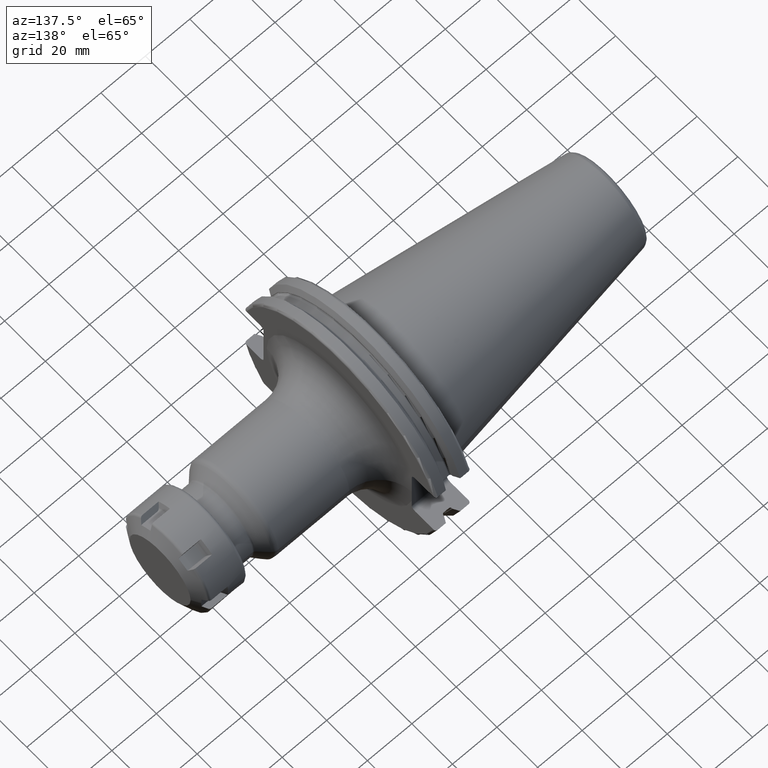
[diagram: clean part render]
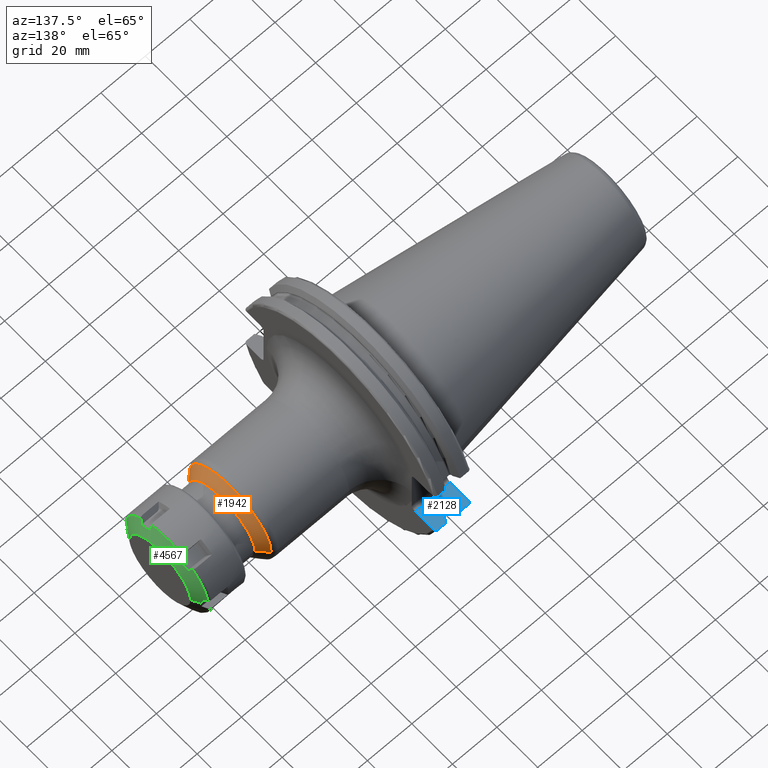
[diagram: same view with three faces highlighted in distinct colors, each labeled with its STEP entity id]
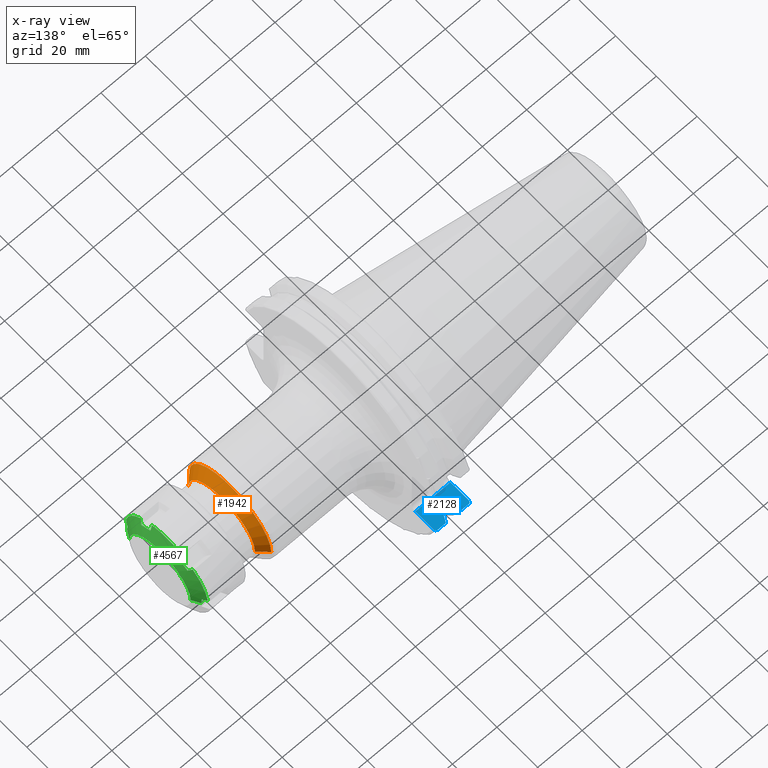
[diagram: x-ray of the same camera — body ghosted, the three highlighted faces saturated]
A machine part, auxiliary view with three faces highlighted in distinct colors.
The next image is the same camera in x-ray (body ghosted, the three faces saturated) — at least one of them is partly hidden behind the body in this view.
Their STEP definitions:

[orange] entity #1942 — the highlighted conical surface has half-angle 45 deg.
#243=DIRECTION('',(-7.071067811865E-1,-7.071067811865E-1,-2.816704242456E-12));
#244=VECTOR('',#243,5.414213562372E0);
#245=CARTESIAN_POINT('',(7.220710678119E1,-1.629289321881E1,
8.958065872191E-13));
#246=LINE('',#245,#244);
#252=DIRECTION('',(-7.071067811865E-1,7.071067811865E-1,2.816683508165E-12));
#253=VECTOR('',#252,5.414213562372E0);
#254=CARTESIAN_POINT('',(7.220710678119E1,1.629289321881E1,
-8.981511589857E-13));
#255=LINE('',#254,#253);
#256=CARTESIAN_POINT('',(6.837867965644E1,0.E0,0.E0));
#257=DIRECTION('',(-1.E0,0.E0,0.E0));
#258=DIRECTION('',(0.E0,-1.E0,0.E0));
#259=AXIS2_PLACEMENT_3D('',#256,#257,#258);
#261=CARTESIAN_POINT('',(7.220710678119E1,0.E0,0.E0));
#262=DIRECTION('',(1.E0,0.E0,0.E0));
#263=DIRECTION('',(0.E0,1.E0,0.E0));
#264=AXIS2_PLACEMENT_3D('',#261,#262,#263);
#1576=CARTESIAN_POINT('',(7.220710678119E1,-1.629289321881E1,0.E0));
#1577=CARTESIAN_POINT('',(7.220710678119E1,1.629289321881E1,0.E0));
#1578=VERTEX_POINT('',#1576);
#1579=VERTEX_POINT('',#1577);
#1588=CARTESIAN_POINT('',(6.837867965644E1,2.012132034356E1,0.E0));
#1589=CARTESIAN_POINT('',(6.837867965644E1,-2.012132034356E1,0.E0));
#1590=VERTEX_POINT('',#1588);
#1591=VERTEX_POINT('',#1589);
#1930=CARTESIAN_POINT('',(7.029289321881E1,0.E0,0.E0));
#1931=DIRECTION('',(-1.E0,0.E0,0.E0));
#1932=DIRECTION('',(0.E0,1.E0,0.E0));
#1933=AXIS2_PLACEMENT_3D('',#1930,#1931,#1932);
#1934=CONICAL_SURFACE('',#1933,1.820710678119E1,4.5E1);
#1935=ORIENTED_EDGE('',*,*,#1882,.T.);
#1936=ORIENTED_EDGE('',*,*,#1925,.F.);
#1938=ORIENTED_EDGE('',*,*,#1937,.T.);
#1939=ORIENTED_EDGE('',*,*,#1921,.T.);
#1940=EDGE_LOOP('',(#1935,#1936,#1938,#1939));
#1941=FACE_OUTER_BOUND('',#1940,.F.);
#1942=ADVANCED_FACE('',(#1941),#1934,.T.);
#260=CIRCLE('',#259,2.012132034356E1);
#265=CIRCLE('',#264,1.629289321881E1);
#1882=EDGE_CURVE('',#1591,#1590,#260,.T.);
#1921=EDGE_CURVE('',#1578,#1591,#246,.T.);
#1925=EDGE_CURVE('',#1579,#1590,#255,.T.);
#1937=EDGE_CURVE('',#1579,#1578,#265,.T.);

[blue] entity #2128 — the highlighted planar face has unit normal (0, 0, -1).
#139=DIRECTION('',(0.E0,-1.E0,0.E0));
#140=VECTOR('',#139,8.911493733886E0);
#141=CARTESIAN_POINT('',(1.905E1,4.596149373389E1,-1.29E1));
#142=LINE('',#141,#140);
#360=DIRECTION('',(-1.E0,0.E0,0.E0));
#361=VECTOR('',#360,1.585E1);
#362=CARTESIAN_POINT('',(1.905E1,3.705E1,-1.29E1));
#363=LINE('',#362,#361);
#394=DIRECTION('',(0.E0,-1.E0,0.E0));
#395=VECTOR('',#394,8.911493733886E0);
#396=CARTESIAN_POINT('',(3.2E0,4.596149373389E1,-1.29E1));
#397=LINE('',#396,#395);
#451=CARTESIAN_POINT('',(1.805E1,4.699929686974E1,-1.29E1));
#452=CARTESIAN_POINT('',(1.812676342368E1,4.699929686974E1,-1.29E1));
#453=CARTESIAN_POINT('',(1.827575329770E1,4.698147245914E1,-1.29E1));
#454=CARTESIAN_POINT('',(1.849056832427E1,4.690313408822E1,-1.29E1));
#455=CARTESIAN_POINT('',(1.868190698842E1,4.677722381974E1,-1.29E1));
#456=CARTESIAN_POINT('',(1.884050497536E1,4.661134760606E1,-1.29E1));
#457=CARTESIAN_POINT('',(1.895953365851E1,4.641358752589E1,-1.29E1));
#458=CARTESIAN_POINT('',(1.903320906929E1,4.619315655817E1,-1.29E1));
#459=CARTESIAN_POINT('',(1.905E1,4.604021961607E1,-1.29E1));
#460=CARTESIAN_POINT('',(1.905E1,4.596149373389E1,-1.29E1));
#504=DIRECTION('',(1.E0,0.E0,0.E0));
#505=VECTOR('',#504,3.734621614173E0);
#506=CARTESIAN_POINT('',(4.2E0,4.699929686974E1,-1.29E1));
#507=LINE('',#506,#505);
#517=DIRECTION('',(1.E0,0.E0,0.E0));
#518=VECTOR('',#517,3.634621614173E0);
#519=CARTESIAN_POINT('',(1.441537838583E1,4.699929686974E1,-1.29E1));
#520=LINE('',#519,#518);
#566=CARTESIAN_POINT('',(3.2E0,4.596149373389E1,-1.29E1));
#567=CARTESIAN_POINT('',(3.2E0,4.604026443227E1,-1.29E1));
#568=CARTESIAN_POINT('',(3.216813255287E0,4.619328239852E1,-1.29E1));
#569=CARTESIAN_POINT('',(3.290538328370E0,4.641376542139E1,-1.29E1));
#570=CARTESIAN_POINT('',(3.409705660893E0,4.661163928454E1,-1.29E1));
#571=CARTESIAN_POINT('',(3.568375595419E0,4.677744698912E1,-1.29E1));
#572=CARTESIAN_POINT('',(3.759602935675E0,4.690321007119E1,-1.29E1));
#573=CARTESIAN_POINT('',(3.974378910530E0,4.698149887214E1,-1.29E1));
#574=CARTESIAN_POINT('',(4.123284460641E0,4.699929686974E1,-1.29E1));
#575=CARTESIAN_POINT('',(4.2E0,4.699929686974E1,-1.29E1));
#637=CARTESIAN_POINT('',(9.2625E0,4.460981716077E1,-1.29E1));
#638=CARTESIAN_POINT('',(9.118283773553E0,4.486984125009E1,-1.29E1));
#639=CARTESIAN_POINT('',(8.827633549554E0,4.539353719098E1,-1.29E1));
#640=CARTESIAN_POINT('',(8.385043355543E0,4.618996220278E1,-1.29E1));
#641=CARTESIAN_POINT('',(8.085504386120E0,4.672829507383E1,-1.29E1));
#642=CARTESIAN_POINT('',(7.934621614173E0,4.699929686974E1,-1.29E1));
#678=DIRECTION('',(0.E0,-1.E0,2.729156701685E-14));
#679=VECTOR('',#678,1.952643655423E-1);
#680=CARTESIAN_POINT('',(9.2625E0,4.460981716077E1,-1.29E1));
#681=LINE('',#680,#679);
#849=DIRECTION('',(0.E0,-1.E0,0.E0));
#850=VECTOR('',#849,1.952643655423E-1);
#851=CARTESIAN_POINT('',(1.30875E1,4.460981716077E1,-1.29E1));
#852=LINE('',#851,#850);
#942=CARTESIAN_POINT('',(1.23375E1,4.363301502303E1,-1.29E1));
#943=CARTESIAN_POINT('',(1.239557783586E1,4.363301502303E1,-1.29E1));
#944=CARTESIAN_POINT('',(1.250820906846E1,4.364665007470E1,-1.29E1));
#945=CARTESIAN_POINT('',(1.267093813797E1,4.370694986561E1,-1.29E1));
#946=CARTESIAN_POINT('',(1.281439563225E1,4.380294947330E1,-1.29E1));
#947=CARTESIAN_POINT('',(1.293252862153E1,4.392839993682E1,-1.29E1));
#948=CARTESIAN_POINT('',(1.302050347613E1,4.407653953968E1,-1.29E1));
#949=CARTESIAN_POINT('',(1.307501400290E1,4.424119768686E1,-1.29E1));
#950=CARTESIAN_POINT('',(1.30875E1,4.435563691943E1,-1.29E1));
#951=CARTESIAN_POINT('',(1.30875E1,4.441455279523E1,-1.29E1));
#996=DIRECTION('',(1.E0,0.E0,0.E0));
#997=VECTOR('',#996,2.325E0);
#998=CARTESIAN_POINT('',(1.00125E1,4.363301502303E1,-1.29E1));
#999=LINE('',#998,#997);
#1022=CARTESIAN_POINT('',(9.2625E0,4.441455279523E1,-1.29E1));
#1023=CARTESIAN_POINT('',(9.2625E0,4.435555884443E1,-1.29E1));
#1024=CARTESIAN_POINT('',(9.275014162185E0,4.424097575422E1,-1.29E1));
#1025=CARTESIAN_POINT('',(9.329696831815E0,4.407605680232E1,-1.29E1));
#1026=CARTESIAN_POINT('',(9.417872182230E0,4.392785719897E1,-1.29E1));
#1027=CARTESIAN_POINT('',(9.536145437868E0,4.380249220706E1,-1.29E1));
#1028=CARTESIAN_POINT('',(9.679609056136E0,4.370669047421E1,-1.29E1));
#1029=CARTESIAN_POINT('',(9.842068775406E0,4.364660851031E1,-1.29E1));
#1030=CARTESIAN_POINT('',(9.954524536379E0,4.363301502303E1,-1.29E1));
#1031=CARTESIAN_POINT('',(1.00125E1,4.363301502303E1,-1.29E1));
#1076=CARTESIAN_POINT('',(1.30875E1,4.460981716077E1,-1.29E1));
#1077=CARTESIAN_POINT('',(1.323171622645E1,4.486984125009E1,-1.29E1));
#1078=CARTESIAN_POINT('',(1.352236645045E1,4.539353719098E1,-1.29E1));
#1079=CARTESIAN_POINT('',(1.396495664446E1,4.618996220278E1,-1.29E1));
#1080=CARTESIAN_POINT('',(1.426449561388E1,4.672829507383E1,-1.29E1));
#1081=CARTESIAN_POINT('',(1.441537838583E1,4.699929686974E1,-1.29E1));
#1412=CARTESIAN_POINT('',(9.2625E0,4.460981716077E1,-1.29E1));
#1413=CARTESIAN_POINT('',(9.2625E0,4.441455279523E1,-1.29E1));
#1414=VERTEX_POINT('',#1412);
#1415=VERTEX_POINT('',#1413);
#1434=CARTESIAN_POINT('',(1.30875E1,4.460981716077E1,-1.29E1));
#1435=CARTESIAN_POINT('',(1.30875E1,4.441455279523E1,-1.29E1));
#1436=VERTEX_POINT('',#1434);
#1437=VERTEX_POINT('',#1435);
#1448=VERTEX_POINT('',#1031);
#1450=CARTESIAN_POINT('',(1.23375E1,4.363301502303E1,-1.29E1));
#1451=VERTEX_POINT('',#1450);
#1454=VERTEX_POINT('',#1081);
#1456=VERTEX_POINT('',#642);
#1466=CARTESIAN_POINT('',(4.2E0,4.699929686974E1,-1.29E1));
#1467=VERTEX_POINT('',#1466);
#1468=CARTESIAN_POINT('',(1.805E1,4.699929686974E1,-1.29E1));
#1469=VERTEX_POINT('',#1468);
#1481=VERTEX_POINT('',#460);
#1483=VERTEX_POINT('',#566);
#1533=CARTESIAN_POINT('',(1.905E1,3.705E1,-1.29E1));
#1534=CARTESIAN_POINT('',(3.2E0,3.705E1,-1.29E1));
#1535=VERTEX_POINT('',#1533);
#1536=VERTEX_POINT('',#1534);
#2095=CARTESIAN_POINT('',(1.905E1,3.53E1,-1.29E1));
#2096=DIRECTION('',(0.E0,0.E0,-1.E0));
#2097=DIRECTION('',(0.E0,1.E0,0.E0));
#2098=AXIS2_PLACEMENT_3D('',#2095,#2096,#2097);
#2099=PLANE('',#2098);
#2100=ORIENTED_EDGE('',*,*,#2086,.T.);
#2102=ORIENTED_EDGE('',*,*,#2101,.F.);
#2104=ORIENTED_EDGE('',*,*,#2103,.T.);
#2106=ORIENTED_EDGE('',*,*,#2105,.T.);
#2108=ORIENTED_EDGE('',*,*,#2107,.F.);
#2110=ORIENTED_EDGE('',*,*,#2109,.T.);
#2112=ORIENTED_EDGE('',*,*,#2111,.T.);
#2114=ORIENTED_EDGE('',*,*,#2113,.T.);
#2116=ORIENTED_EDGE('',*,*,#2115,.T.);
#2118=ORIENTED_EDGE('',*,*,#2117,.F.);
#2120=ORIENTED_EDGE('',*,*,#2119,.T.);
#2122=ORIENTED_EDGE('',*,*,#2121,.T.);
#2124=ORIENTED_EDGE('',*,*,#2123,.T.);
#2125=ORIENTED_EDGE('',*,*,#1795,.T.);
#2126=EDGE_LOOP('',(#2100,#2102,#2104,#2106,#2108,#2110,#2112,#2114,#2116,#2118,
#2120,#2122,#2124,#2125));
#2127=FACE_OUTER_BOUND('',#2126,.F.);
#2128=ADVANCED_FACE('',(#2127),#2099,.F.);
#461=B_SPLINE_CURVE_WITH_KNOTS('',3,(#451,#452,#453,#454,#455,#456,#457,#458,
#459,#460),.UNSPECIFIED.,.F.,.F.,(4,1,1,1,1,1,1,4),(0.E0,1.428571428571E-1,
2.857142857143E-1,4.285714285714E-1,5.714285714286E-1,7.142857142857E-1,
8.571428571429E-1,1.E0),.UNSPECIFIED.);
#576=B_SPLINE_CURVE_WITH_KNOTS('',3,(#566,#567,#568,#569,#570,#571,#572,#573,
#574,#575),.UNSPECIFIED.,.F.,.F.,(4,1,1,1,1,1,1,4),(0.E0,1.428571428571E-1,
2.857142857143E-1,4.285714285714E-1,5.714285714286E-1,7.142857142857E-1,
8.571428571429E-1,1.E0),.UNSPECIFIED.);
#643=B_SPLINE_CURVE_WITH_KNOTS('',3,(#637,#638,#639,#640,#641,#642),
.UNSPECIFIED.,.F.,.F.,(4,1,1,4),(0.E0,3.333333333333E-1,6.666666666667E-1,1.E0),
.UNSPECIFIED.);
#952=B_SPLINE_CURVE_WITH_KNOTS('',3,(#942,#943,#944,#945,#946,#947,#948,#949,
#950,#951),.UNSPECIFIED.,.F.,.F.,(4,1,1,1,1,1,1,4),(0.E0,1.428571428571E-1,
2.857142857143E-1,4.285714285714E-1,5.714285714286E-1,7.142857142857E-1,
8.571428571429E-1,1.E0),.UNSPECIFIED.);
#1032=B_SPLINE_CURVE_WITH_KNOTS('',3,(#1022,#1023,#1024,#1025,#1026,#1027,#1028,
#1029,#1030,#1031),.UNSPECIFIED.,.F.,.F.,(4,1,1,1,1,1,1,4),(0.E0,
1.428571428571E-1,2.857142857143E-1,4.285714285714E-1,5.714285714286E-1,
7.142857142857E-1,8.571428571429E-1,1.E0),.UNSPECIFIED.);
#1082=B_SPLINE_CURVE_WITH_KNOTS('',3,(#1076,#1077,#1078,#1079,#1080,#1081),
.UNSPECIFIED.,.F.,.F.,(4,1,1,4),(0.E0,3.333333333333E-1,6.666666666667E-1,1.E0),
.UNSPECIFIED.);
#1795=EDGE_CURVE('',#1481,#1535,#142,.T.);
#2086=EDGE_CURVE('',#1535,#1536,#363,.T.);
#2101=EDGE_CURVE('',#1483,#1536,#397,.T.);
#2103=EDGE_CURVE('',#1483,#1467,#576,.T.);
#2105=EDGE_CURVE('',#1467,#1456,#507,.T.);
#2107=EDGE_CURVE('',#1414,#1456,#643,.T.);
#2109=EDGE_CURVE('',#1414,#1415,#681,.T.);
#2111=EDGE_CURVE('',#1415,#1448,#1032,.T.);
#2113=EDGE_CURVE('',#1448,#1451,#999,.T.);
#2115=EDGE_CURVE('',#1451,#1437,#952,.T.);
#2117=EDGE_CURVE('',#1436,#1437,#852,.T.);
#2119=EDGE_CURVE('',#1436,#1454,#1082,.T.);
#2121=EDGE_CURVE('',#1454,#1469,#520,.T.);
#2123=EDGE_CURVE('',#1469,#1481,#461,.T.);

[green] entity #4567 — the highlighted conical surface has half-angle 60 deg.
#3356=DIRECTION('',(-5.E-1,-8.660254037844E-1,0.E0));
#3357=VECTOR('',#3356,3.724539878802E0);
#3358=CARTESIAN_POINT('',(2.E1,-1.5E1,0.E0));
#3359=LINE('',#3358,#3357);
#3365=DIRECTION('',(-5.E-1,8.660254037844E-1,1.219275797742E-14));
#3366=VECTOR('',#3365,3.724539878802E0);
#3367=CARTESIAN_POINT('',(2.E1,1.5E1,0.E0));
#3368=LINE('',#3367,#3366);
#3610=CARTESIAN_POINT('',(1.689674230311E1,-2.014122163836E1,3.077631542997E0));
#3611=CARTESIAN_POINT('',(1.708907504526E1,-1.981659263641E1,2.996692442277E0));
#3612=CARTESIAN_POINT('',(1.747048804972E1,-1.917268684533E1,2.836148697367E0));
#3613=CARTESIAN_POINT('',(1.784538315893E1,-1.853947826048E1,2.678272065523E0));
#3614=CARTESIAN_POINT('',(1.803119743883E1,-1.822554615245E1,2.6E0));
#3616=CARTESIAN_POINT('',(1.689674230311E1,-1.915276904626E-14,0.E0));
#3617=DIRECTION('',(-1.E0,0.E0,0.E0));
#3618=DIRECTION('',(0.E0,-9.885262153796E-1,1.510494008833E-1));
#3619=AXIS2_PLACEMENT_3D('',#3616,#3617,#3618);
#3621=CARTESIAN_POINT('',(1.803119743883E1,-1.136443912607E1,1.448378596587E1));
#3622=CARTESIAN_POINT('',(1.784547076956E1,-1.158908480779E1,1.471641337916E1));
#3623=CARTESIAN_POINT('',(1.747066334160E1,-1.204230833280E1,1.518574007823E1));
#3624=CARTESIAN_POINT('',(1.708916272E1,-1.250340215670E1,1.566321671038E1));
#3625=CARTESIAN_POINT('',(1.689674230311E1,-1.273591791890E1,1.590399383057E1));
#3627=CARTESIAN_POINT('',(1.803119743883E1,-6.861107026386E0,1.708378596587E1));
#3628=CARTESIAN_POINT('',(1.807831826555E1,-7.361586372305E0,1.679483408078E1));
#3629=CARTESIAN_POINT('',(1.814168574823E1,-8.362425592320E0,1.621699928769E1));
#3630=CARTESIAN_POINT('',(1.814168449187E1,-9.863151221670E0,1.535055494160E1));
#3631=CARTESIAN_POINT('',(1.807831703246E1,-1.086397287704E1,1.477273028946E1));
#3632=CARTESIAN_POINT('',(1.803119743883E1,-1.136443912607E1,1.448378596587E1));
#3634=CARTESIAN_POINT('',(1.689674230311E1,-7.405303719456E0,1.898162537357E1));
#3635=CARTESIAN_POINT('',(1.708907504526E1,-7.313084535866E0,1.866001886072E1));
#3636=CARTESIAN_POINT('',(1.747048804972E1,-7.130166601835E0,1.802210821554E1));
#3637=CARTESIAN_POINT('',(1.784538315893E1,-6.950287483250E0,1.739479517924E1));
#3638=CARTESIAN_POINT('',(1.803119743883E1,-6.861107026386E0,1.708378596587E1));
#3640=CARTESIAN_POINT('',(1.689674230311E1,-1.915276904626E-14,0.E0));
#3641=DIRECTION('',(-1.E0,0.E0,0.E0));
#3642=DIRECTION('',(0.E0,-3.634504892985E-1,9.316135152673E-1));
#3643=AXIS2_PLACEMENT_3D('',#3640,#3641,#3642);
#3645=CARTESIAN_POINT('',(1.803119743883E1,6.861107026386E0,1.708378596587E1));
#3646=CARTESIAN_POINT('',(1.784547076956E1,6.950245435050E0,1.739464853974E1));
#3647=CARTESIAN_POINT('',(1.747066334160E1,7.130082516612E0,1.802181497552E1));
#3648=CARTESIAN_POINT('',(1.708916272E1,7.313042497819E0,1.865987225663E1));
#3649=CARTESIAN_POINT('',(1.689674230311E1,7.405303719456E0,1.898162537357E1));
#3651=CARTESIAN_POINT('',(1.803119743883E1,1.136443912607E1,1.448378596587E1));
#3652=CARTESIAN_POINT('',(1.807831826555E1,1.086395978015E1,1.477273785096E1));
#3653=CARTESIAN_POINT('',(1.814168574823E1,9.863120560131E0,1.535057264405E1));
#3654=CARTESIAN_POINT('',(1.814168449187E1,8.362394930781E0,1.621701699013E1));
#3655=CARTESIAN_POINT('',(1.807831703246E1,7.361573275411E0,1.679484164227E1));
#3656=CARTESIAN_POINT('',(1.803119743883E1,6.861107026386E0,1.708378596587E1));
#3658=CARTESIAN_POINT('',(1.689674230311E1,1.273591791890E1,1.590399383057E1));
#3659=CARTESIAN_POINT('',(1.708907504526E1,1.250350810055E1,1.566332641844E1));
#3660=CARTESIAN_POINT('',(1.747048804972E1,1.204252024350E1,1.518595951818E1));
#3661=CARTESIAN_POINT('',(1.784538315893E1,1.158919077723E1,1.471652311372E1));
#3662=CARTESIAN_POINT('',(1.803119743883E1,1.136443912607E1,1.448378596587E1));
#3664=CARTESIAN_POINT('',(1.689674230311E1,-1.915276904626E-14,0.E0));
#3665=DIRECTION('',(-1.E0,0.E0,0.E0));
#3666=DIRECTION('',(0.E0,6.250757260812E-1,7.805641143840E-1));
#3667=AXIS2_PLACEMENT_3D('',#3664,#3665,#3666);
#3669=CARTESIAN_POINT('',(1.803119743883E1,1.822554615245E1,2.6E0));
#3670=CARTESIAN_POINT('',(1.784547076956E1,1.853933024284E1,2.678235160582E0));
#3671=CARTESIAN_POINT('',(1.747066334160E1,1.917239084941E1,2.836074897296E0));
#3672=CARTESIAN_POINT('',(1.708916272E1,1.981644465452E1,2.996655546247E0));
#3673=CARTESIAN_POINT('',(1.689674230311E1,2.014122163836E1,3.077631542997E0));
#3675=CARTESIAN_POINT('',(1.813773006060E1,1.822554615245E1,
4.663706011864E-14));
#3676=CARTESIAN_POINT('',(1.813773006060E1,1.822554615245E1,2.889809035546E-1));
#3677=CARTESIAN_POINT('',(1.812978891864E1,1.822554615245E1,8.668802635554E-1));
#3678=CARTESIAN_POINT('',(1.809415446357E1,1.822554615245E1,1.733491685998E0));
#3679=CARTESIAN_POINT('',(1.805474752385E1,1.822554615245E1,2.311174784706E0));
#3680=CARTESIAN_POINT('',(1.803119743883E1,1.822554615245E1,2.6E0));
#3682=CARTESIAN_POINT('',(2.E1,-2.266909448450E-14,0.E0));
#3683=DIRECTION('',(1.E0,0.E0,0.E0));
#3684=DIRECTION('',(0.E0,1.E0,0.E0));
#3685=AXIS2_PLACEMENT_3D('',#3682,#3683,#3684);
#3687=CARTESIAN_POINT('',(1.803119743883E1,-1.822554615245E1,2.6E0));
#3688=CARTESIAN_POINT('',(1.805475075341E1,-1.822554615245E1,2.311135176476E0));
#3689=CARTESIAN_POINT('',(1.809415978675E1,-1.822554615245E1,1.733399257211E0));
#3690=CARTESIAN_POINT('',(1.812979067473E1,-1.822554615245E1,
8.668016124823E-1));
#3691=CARTESIAN_POINT('',(1.813773006060E1,-1.822554615245E1,
2.889472613190E-1));
#3692=CARTESIAN_POINT('',(1.813773006060E1,-1.822554615245E1,0.E0));
#4092=CARTESIAN_POINT('',(2.E1,1.5E1,0.E0));
#4093=CARTESIAN_POINT('',(2.E1,-1.5E1,0.E0));
#4094=VERTEX_POINT('',#4092);
#4095=VERTEX_POINT('',#4093);
#4104=VERTEX_POINT('',#3669);
#4105=VERTEX_POINT('',#3673);
#4106=VERTEX_POINT('',#3675);
#4121=VERTEX_POINT('',#3658);
#4122=VERTEX_POINT('',#3662);
#4123=VERTEX_POINT('',#3645);
#4124=VERTEX_POINT('',#3649);
#4135=VERTEX_POINT('',#3634);
#4136=VERTEX_POINT('',#3638);
#4137=VERTEX_POINT('',#3621);
#4138=VERTEX_POINT('',#3625);
#4149=VERTEX_POINT('',#3610);
#4150=VERTEX_POINT('',#3614);
#4151=VERTEX_POINT('',#3692);
#4537=CARTESIAN_POINT('',(1.844837115155E1,-2.091093176538E-14,0.E0));
#4538=DIRECTION('',(-1.E0,0.E0,0.E0));
#4539=DIRECTION('',(0.E0,1.E0,0.E0));
#4540=AXIS2_PLACEMENT_3D('',#4537,#4538,#4539);
#4541=CONICAL_SURFACE('',#4540,1.76875E1,6.E1);
#4543=ORIENTED_EDGE('',*,*,#4542,.F.);
#4544=ORIENTED_EDGE('',*,*,#4392,.T.);
#4546=ORIENTED_EDGE('',*,*,#4545,.F.);
#4548=ORIENTED_EDGE('',*,*,#4547,.F.);
#4550=ORIENTED_EDGE('',*,*,#4549,.F.);
#4551=ORIENTED_EDGE('',*,*,#4376,.T.);
#4552=ORIENTED_EDGE('',*,*,#4514,.F.);
#4553=ORIENTED_EDGE('',*,*,#4531,.F.);
#4554=ORIENTED_EDGE('',*,*,#4452,.F.);
#4555=ORIENTED_EDGE('',*,*,#4360,.T.);
#4557=ORIENTED_EDGE('',*,*,#4556,.F.);
#4559=ORIENTED_EDGE('',*,*,#4558,.F.);
#4560=ORIENTED_EDGE('',*,*,#4230,.F.);
#4561=ORIENTED_EDGE('',*,*,#4201,.T.);
#4562=ORIENTED_EDGE('',*,*,#4227,.T.);
#4564=ORIENTED_EDGE('',*,*,#4563,.F.);
#4565=EDGE_LOOP('',(#4543,#4544,#4546,#4548,#4550,#4551,#4552,#4553,#4554,#4555,
#4557,#4559,#4560,#4561,#4562,#4564));
#4566=FACE_OUTER_BOUND('',#4565,.F.);
#4567=ADVANCED_FACE('',(#4566),#4541,.T.);
#3615=B_SPLINE_CURVE_WITH_KNOTS('',3,(#3610,#3611,#3612,#3613,#3614),
.UNSPECIFIED.,.F.,.F.,(4,1,4),(0.E0,5.E-1,1.E0),.UNSPECIFIED.);
#3620=CIRCLE('',#3619,2.0375E1);
#3626=B_SPLINE_CURVE_WITH_KNOTS('',3,(#3621,#3622,#3623,#3624,#3625),
.UNSPECIFIED.,.F.,.F.,(4,1,4),(0.E0,5.E-1,1.E0),.UNSPECIFIED.);
#3633=B_SPLINE_CURVE_WITH_KNOTS('',3,(#3627,#3628,#3629,#3630,#3631,#3632),
.UNSPECIFIED.,.F.,.F.,(4,1,1,4),(0.E0,3.333333333333E-1,6.666666666667E-1,1.E0),
.UNSPECIFIED.);
#3639=B_SPLINE_CURVE_WITH_KNOTS('',3,(#3634,#3635,#3636,#3637,#3638),
.UNSPECIFIED.,.F.,.F.,(4,1,4),(0.E0,5.E-1,1.E0),.UNSPECIFIED.);
#3644=CIRCLE('',#3643,2.0375E1);
#3650=B_SPLINE_CURVE_WITH_KNOTS('',3,(#3645,#3646,#3647,#3648,#3649),
.UNSPECIFIED.,.F.,.F.,(4,1,4),(0.E0,5.E-1,1.E0),.UNSPECIFIED.);
#3657=B_SPLINE_CURVE_WITH_KNOTS('',3,(#3651,#3652,#3653,#3654,#3655,#3656),
.UNSPECIFIED.,.F.,.F.,(4,1,1,4),(0.E0,3.333333333333E-1,6.666666666667E-1,1.E0),
.UNSPECIFIED.);
#3663=B_SPLINE_CURVE_WITH_KNOTS('',3,(#3658,#3659,#3660,#3661,#3662),
.UNSPECIFIED.,.F.,.F.,(4,1,4),(0.E0,5.E-1,1.E0),.UNSPECIFIED.);
#3668=CIRCLE('',#3667,2.0375E1);
#3674=B_SPLINE_CURVE_WITH_KNOTS('',3,(#3669,#3670,#3671,#3672,#3673),
.UNSPECIFIED.,.F.,.F.,(4,1,4),(0.E0,5.E-1,1.E0),.UNSPECIFIED.);
#3681=B_SPLINE_CURVE_WITH_KNOTS('',3,(#3675,#3676,#3677,#3678,#3679,#3680),
.UNSPECIFIED.,.F.,.F.,(4,1,1,4),(0.E0,3.333333333333E-1,6.666666666667E-1,1.E0),
.UNSPECIFIED.);
#3686=CIRCLE('',#3685,1.5E1);
#3693=B_SPLINE_CURVE_WITH_KNOTS('',3,(#3687,#3688,#3689,#3690,#3691,#3692),
.UNSPECIFIED.,.F.,.F.,(4,1,1,4),(0.E0,3.333333333333E-1,6.666666666667E-1,1.E0),
.UNSPECIFIED.);
#4201=EDGE_CURVE('',#4094,#4095,#3686,.T.);
#4227=EDGE_CURVE('',#4095,#4151,#3359,.T.);
#4230=EDGE_CURVE('',#4094,#4106,#3368,.T.);
#4360=EDGE_CURVE('',#4121,#4105,#3668,.T.);
#4376=EDGE_CURVE('',#4135,#4124,#3644,.T.);
#4392=EDGE_CURVE('',#4149,#4138,#3620,.T.);
#4452=EDGE_CURVE('',#4121,#4122,#3663,.T.);
#4514=EDGE_CURVE('',#4123,#4124,#3650,.T.);
#4531=EDGE_CURVE('',#4122,#4123,#3657,.T.);
#4542=EDGE_CURVE('',#4149,#4150,#3615,.T.);
#4545=EDGE_CURVE('',#4137,#4138,#3626,.T.);
#4547=EDGE_CURVE('',#4136,#4137,#3633,.T.);
#4549=EDGE_CURVE('',#4135,#4136,#3639,.T.);
#4556=EDGE_CURVE('',#4104,#4105,#3674,.T.);
#4558=EDGE_CURVE('',#4106,#4104,#3681,.T.);
#4563=EDGE_CURVE('',#4150,#4151,#3693,.T.);